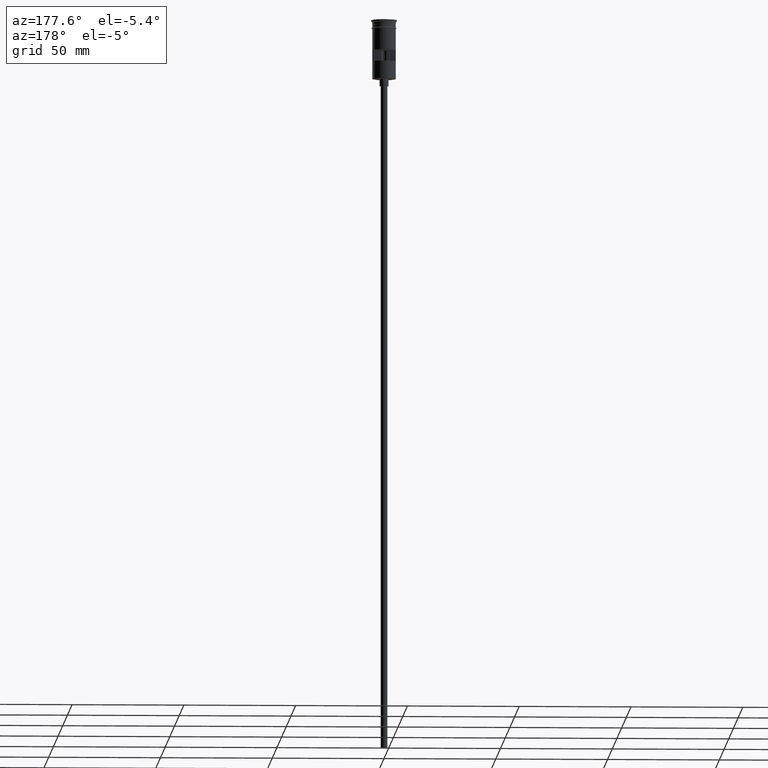
[diagram: clean part render]
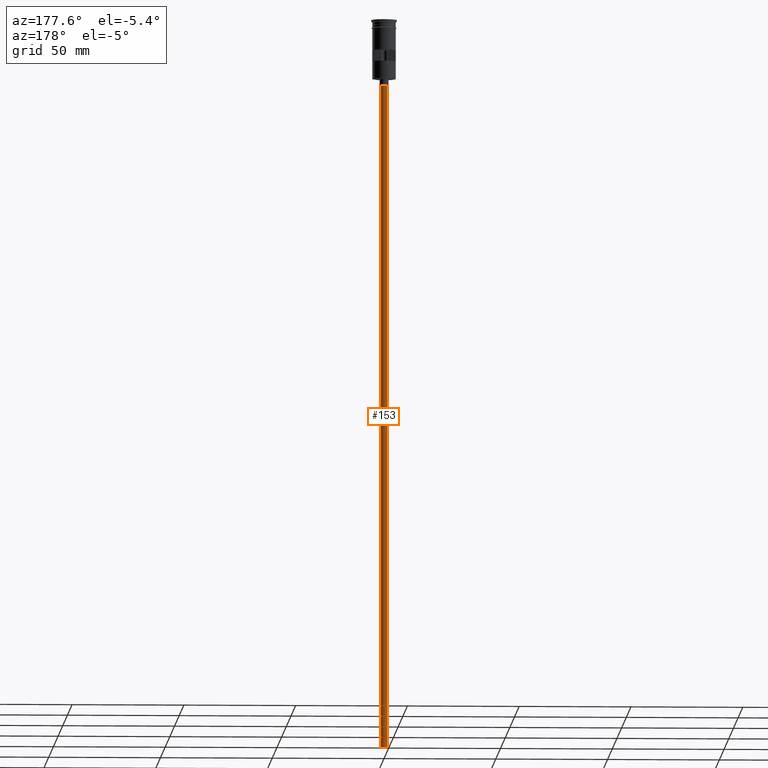
[diagram: same view with one face highlighted and labeled with its STEP entity id]
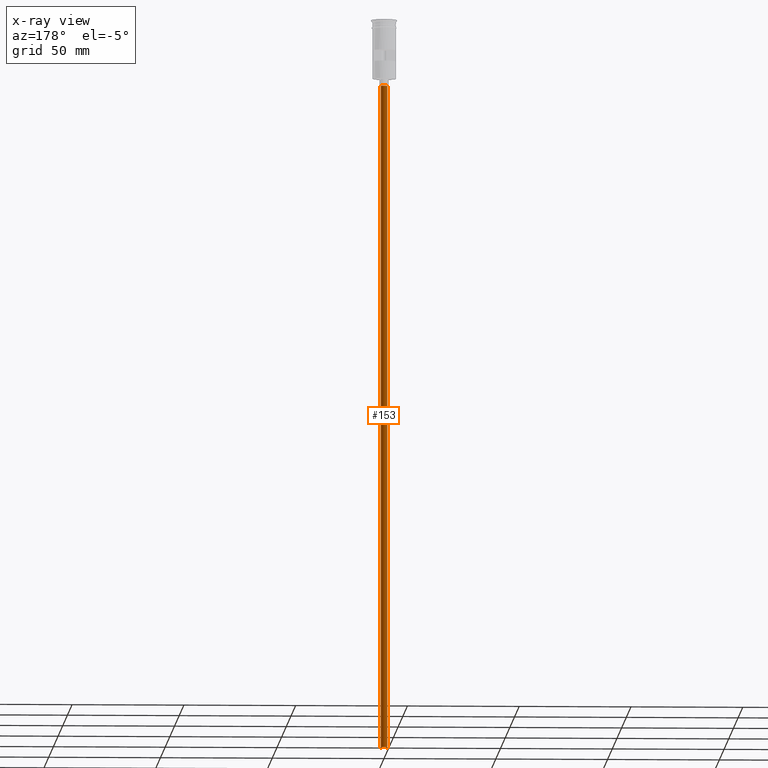
[diagram: x-ray of the same camera — body ghosted, the highlighted face saturated]
A machine part, auxiliary view. The second image highlights one B-rep face of the part: STEP entity #153.
The next image is the same camera in x-ray: the body ghosted, the highlighted face saturated — about 0% of this face is hidden behind the body in this view.
In plain terms, the highlighted cylindrical surface (edge-blend (fillet) strip) has radius 1.5 mm, axis along (-0, -0, 1).
Its self-contained STEP definition (entity closure, byte-faithful):
#22 = VERTEX_POINT ( 'NONE', #96 ) ;
#91 = LINE ( 'NONE', #99, #311 ) ;
#96 = CARTESIAN_POINT ( 'NONE',  ( -1.500000000000000222, 1.836970198721030181E-16, -29.50000000000000000 ) ) ;
#99 = CARTESIAN_POINT ( 'NONE',  ( 1.500000000000000222, 0.000000000000000000, -326.5000000000000000 ) ) ;
#153 = ADVANCED_FACE ( 'NONE', ( #235 ), #617, .T. ) ;
#168 = ORIENTED_EDGE ( 'NONE', *, *, #693, .T. ) ;
#170 = DIRECTION ( 'NONE',  ( -1.000000000000000000, 0.000000000000000000, 0.000000000000000000 ) ) ;
#235 = FACE_OUTER_BOUND ( 'NONE', #417, .T. ) ;
#278 = CARTESIAN_POINT ( 'NONE',  ( 1.500000000000000222, 0.000000000000000000, -326.5000000000000000 ) ) ;
#311 = VECTOR ( 'NONE', #333, 1000.000000000000000 ) ;
#333 = DIRECTION ( 'NONE',  ( -0.000000000000000000, -0.000000000000000000, 1.000000000000000000 ) ) ;
#417 = EDGE_LOOP ( 'NONE', ( #773, #168, #1255, #733 ) ) ;
#439 = CARTESIAN_POINT ( 'NONE',  ( 1.500000000000000222, 0.000000000000000000, -29.50000000000000000 ) ) ;
#452 = EDGE_CURVE ( 'NONE', #1244, #1476, #91, .T. ) ;
#596 = CARTESIAN_POINT ( 'NONE',  ( -1.500000000000000222, 1.836970198721030181E-16, -326.5000000000000000 ) ) ;
#617 = CYLINDRICAL_SURFACE ( 'NONE', #1458, 1.500000000000000222 ) ;
#621 = CARTESIAN_POINT ( 'NONE',  ( 0.000000000000000000, 0.000000000000000000, -326.5000000000000000 ) ) ;
#651 = AXIS2_PLACEMENT_3D ( 'NONE', #1402, #890, #1117 ) ;
#668 = CARTESIAN_POINT ( 'NONE',  ( 0.000000000000000000, 0.000000000000000000, -29.50000000000000000 ) ) ;
#681 = DIRECTION ( 'NONE',  ( -0.000000000000000000, -0.000000000000000000, 1.000000000000000000 ) ) ;
#693 = EDGE_CURVE ( 'NONE', #1348, #22, #1336, .T. ) ;
#733 = ORIENTED_EDGE ( 'NONE', *, *, #452, .F. ) ;
#773 = ORIENTED_EDGE ( 'NONE', *, *, #1342, .F. ) ;
#868 = AXIS2_PLACEMENT_3D ( 'NONE', #668, #1031, #170 ) ;
#890 = DIRECTION ( 'NONE',  ( 0.000000000000000000, 0.000000000000000000, -1.000000000000000000 ) ) ;
#917 = CIRCLE ( 'NONE', #868, 1.500000000000000222 ) ;
#1031 = DIRECTION ( 'NONE',  ( 0.000000000000000000, 0.000000000000000000, -1.000000000000000000 ) ) ;
#1117 = DIRECTION ( 'NONE',  ( -1.000000000000000000, 0.000000000000000000, 0.000000000000000000 ) ) ;
#1210 = DIRECTION ( 'NONE',  ( 1.000000000000000000, 0.000000000000000000, 0.000000000000000000 ) ) ;
#1244 = VERTEX_POINT ( 'NONE', #278 ) ;
#1248 = VECTOR ( 'NONE', #681, 1000.000000000000000 ) ;
#1255 = ORIENTED_EDGE ( 'NONE', *, *, #1505, .T. ) ;
#1336 = LINE ( 'NONE', #596, #1248 ) ;
#1342 = EDGE_CURVE ( 'NONE', #1348, #1244, #1411, .T. ) ;
#1348 = VERTEX_POINT ( 'NONE', #1493 ) ;
#1402 = CARTESIAN_POINT ( 'NONE',  ( 0.000000000000000000, 0.000000000000000000, -326.5000000000000000 ) ) ;
#1411 = CIRCLE ( 'NONE', #651, 1.500000000000000222 ) ;
#1458 = AXIS2_PLACEMENT_3D ( 'NONE', #621, #1495, #1210 ) ;
#1476 = VERTEX_POINT ( 'NONE', #439 ) ;
#1493 = CARTESIAN_POINT ( 'NONE',  ( -1.500000000000000222, 1.836970198721030181E-16, -326.5000000000000000 ) ) ;
#1495 = DIRECTION ( 'NONE',  ( -0.000000000000000000, -0.000000000000000000, 1.000000000000000000 ) ) ;
#1505 = EDGE_CURVE ( 'NONE', #22, #1476, #917, .T. ) ;